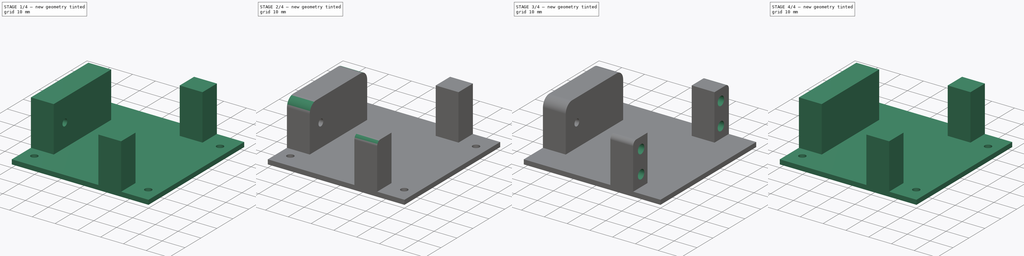
[diagram: build sequence overview — one tinted view per stage of 4, left to right]
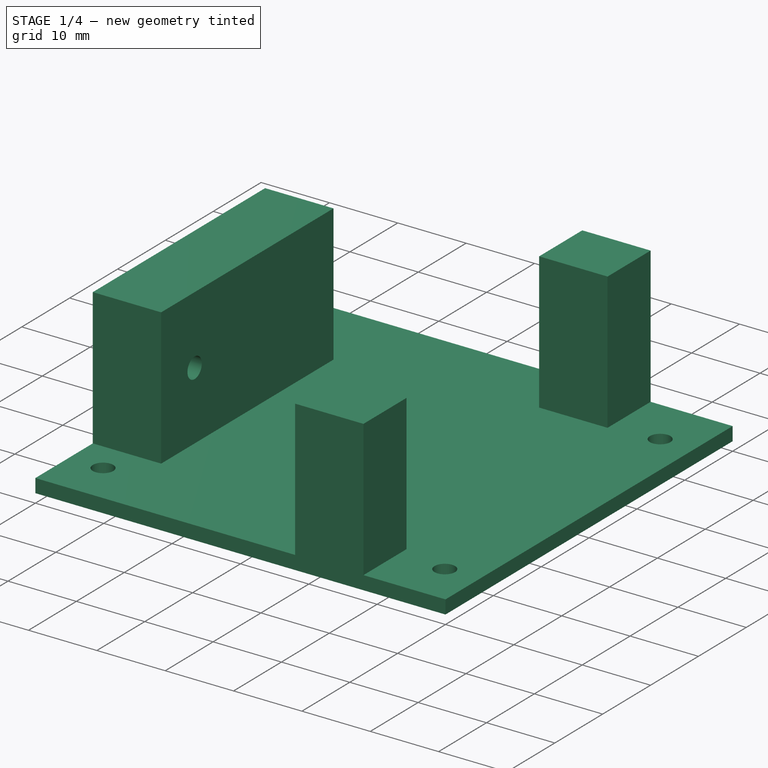
[diagram: stage 1 of 4 — iso view after this stage's code; geometry added in this stage tinted green]
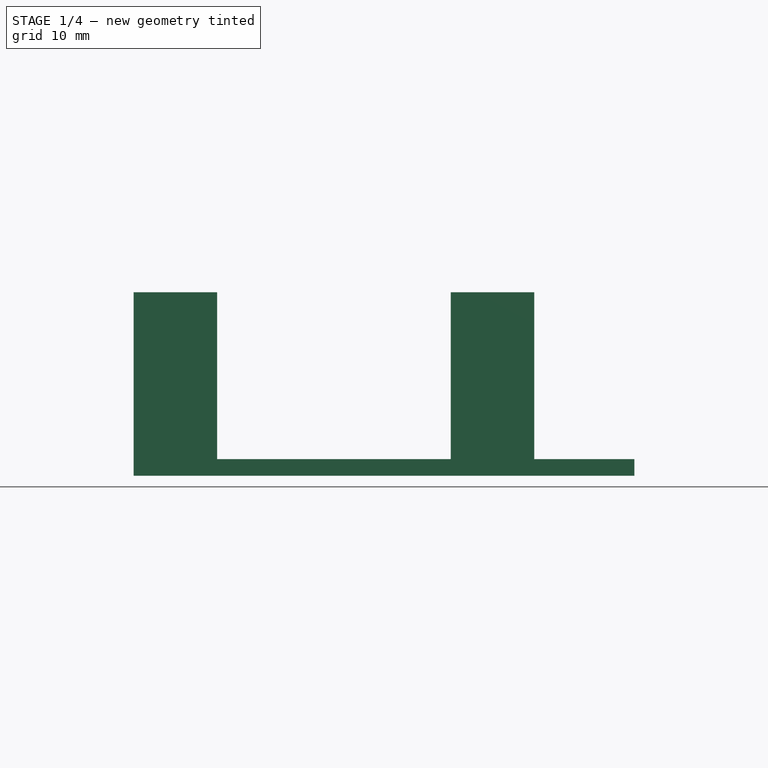
[diagram: stage 1 of 4 — front view after this stage's code; geometry added in this stage tinted green]
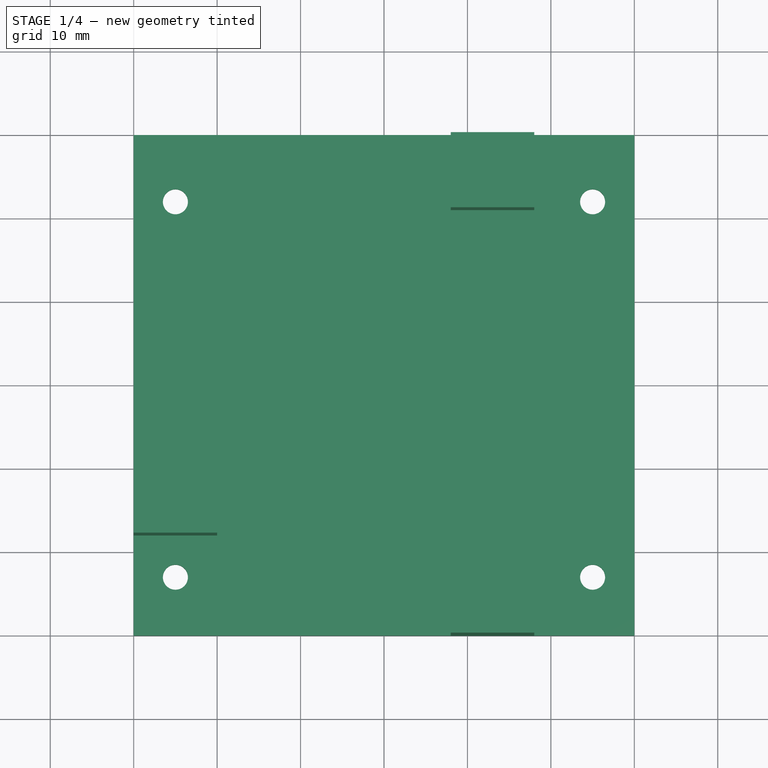
[diagram: stage 1 of 4 — top view after this stage's code; geometry added in this stage tinted green]
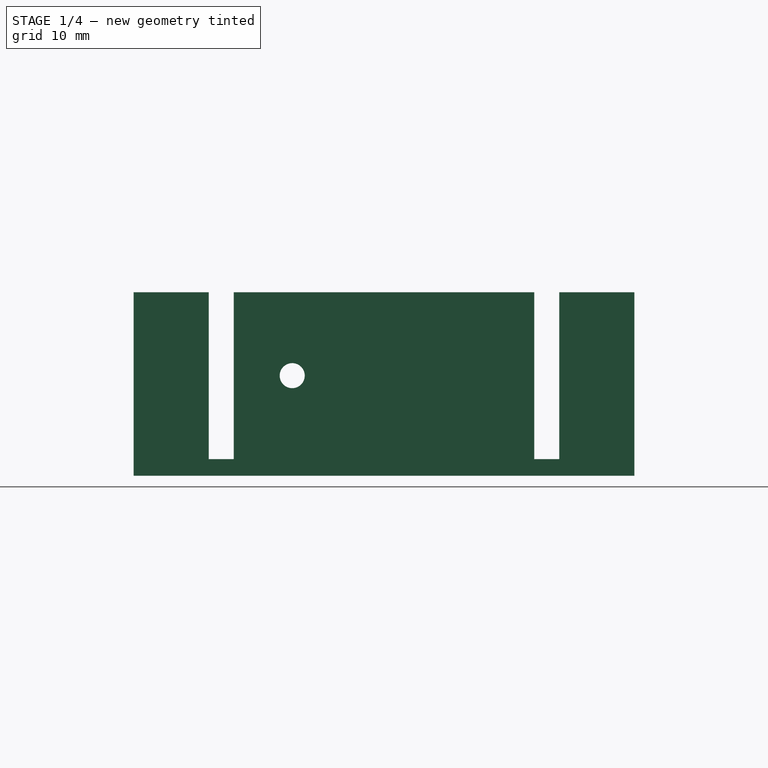
[diagram: stage 1 of 4 — right view after this stage's code; geometry added in this stage tinted green]
FCSTD DOCUMENT  (FreeCAD 0.16R6706 (Git))
Label: iROB-EA_Camara_Servo_Y
License: All rights reserved
LicenseURL: http://en.wikipedia.org/wiki/All_rights_reserved
objects: Sketcher::SketchObject×6, PartDesign::Pocket×4, PartDesign::Fillet×4, PartDesign::Pad×2
note: 22 computed .brp shape members not serialized (recipe doc carries the construction recipe); baked Part::Feature solids carry a one-line shape summary decoded from their .brp

FEATURE [Sketcher::SketchObject] Sketch004  label="Taladro_Eje_1"
  Placement = pos=(-60,0,0) rot=(0.57735,-0.57735,-0.57735;2.0944rad)
  sketch-geometry (1):
    g0: Circle CenterX=-19 CenterY=12 CenterZ=0 NormalX=0 NormalY=0 NormalZ=1 Radius=4.5
  constraints (3):
    c: Radius(g0) = 4.5
    c: DistanceX(g0,g-1) = 19
    c: DistanceY(g-1,g0) = 12
FEATURE [PartDesign::Pocket] Pocket002
  Length = 7
  Sketch = -> Sketch004
  Type = 0
FEATURE [Sketcher::SketchObject] Sketch005  label="Taladro_Eje_2"
  Placement = pos=(-50,0,0) rot=(0.57735,0.57735,0.57735;2.0944rad)
  Support = -> Pocket002 [Face19]
  sketch-geometry (1):
    g0: Circle CenterX=19 CenterY=12 CenterZ=0 NormalX=0 NormalY=0 NormalZ=1 Radius=1.5
  constraints (3):
    c: Radius(g0) = 1.5
    c: DistanceX(g-1,g0) = 19
    c: DistanceY(g-1,g0) = 12
FEATURE [PartDesign::Pocket] Pocket003
  Length = 5
  Sketch = -> Sketch005
  Type = 0
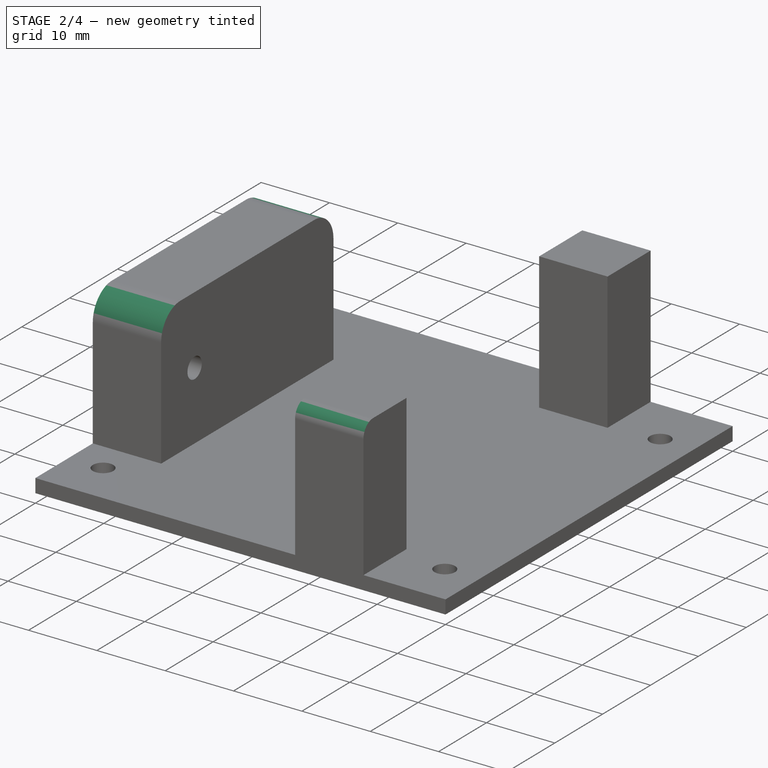
[diagram: stage 2 of 4 — iso view after this stage's code; geometry added in this stage tinted green]
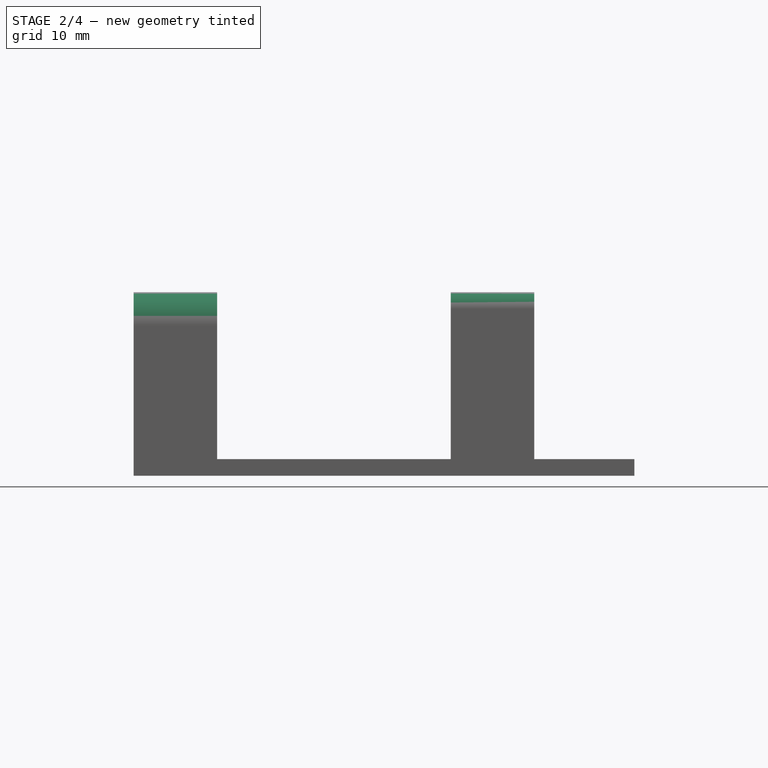
[diagram: stage 2 of 4 — front view after this stage's code; geometry added in this stage tinted green]
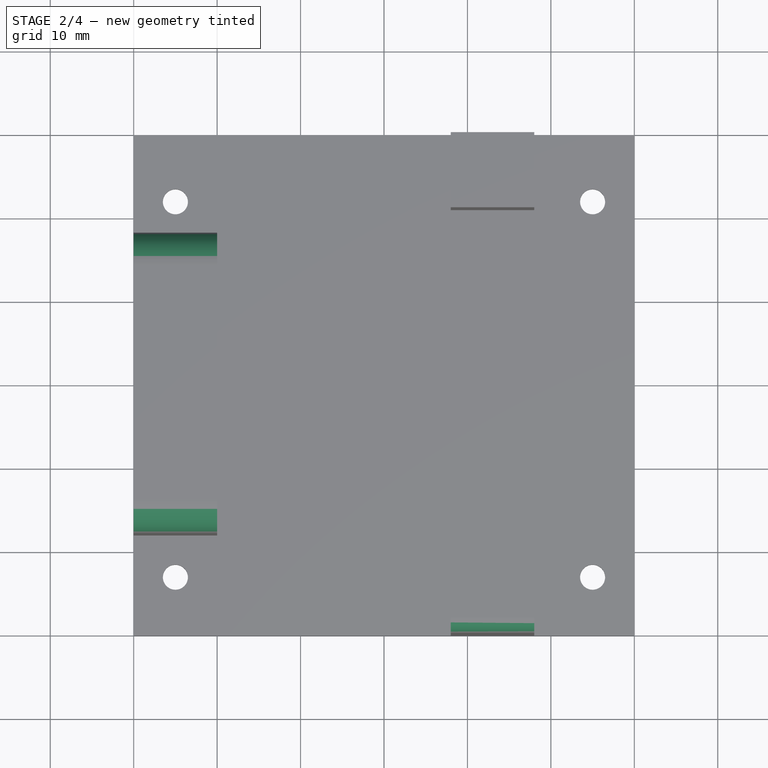
[diagram: stage 2 of 4 — top view after this stage's code; geometry added in this stage tinted green]
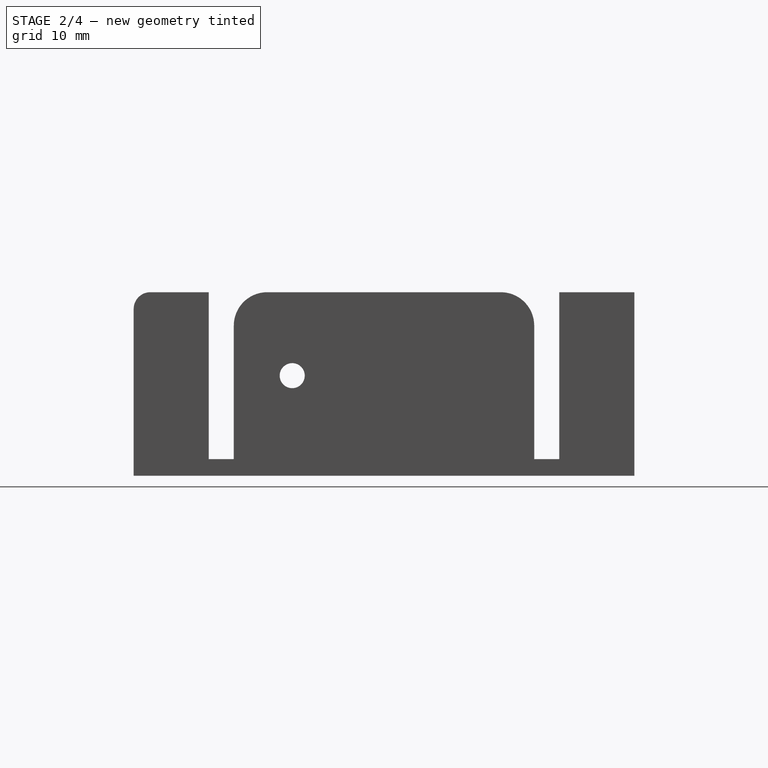
[diagram: stage 2 of 4 — right view after this stage's code; geometry added in this stage tinted green]
FEATURE [PartDesign::Fillet] Fillet
  Base = -> Pocket003 [Edge62]
  Radius = 4
FEATURE [PartDesign::Fillet] Fillet001
  Base = -> Fillet [Edge13]
  Radius = 4
FEATURE [PartDesign::Fillet] Fillet002
  Base = -> Fillet001 [Edge47]
  Radius = 2
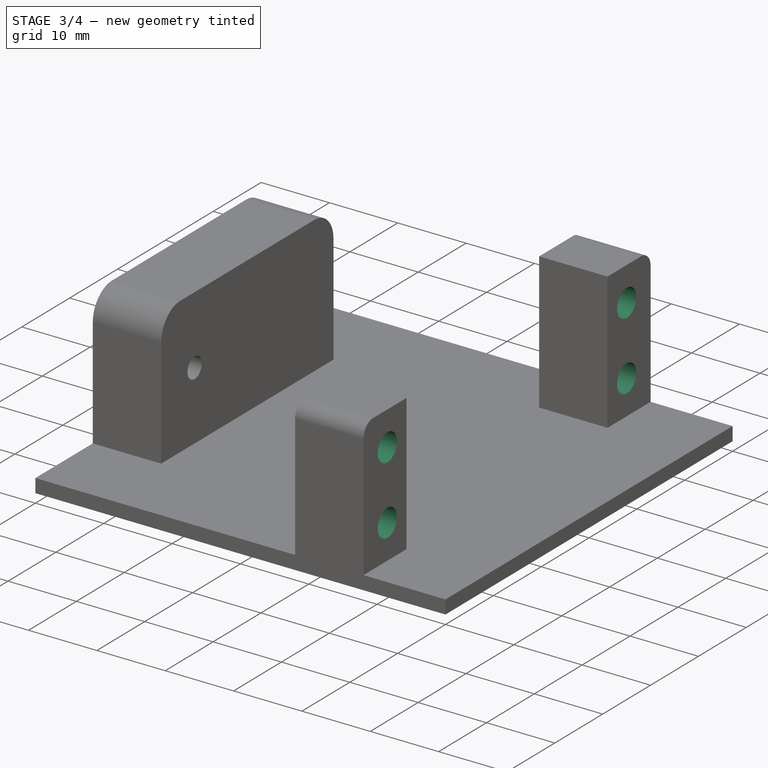
[diagram: stage 3 of 4 — iso view after this stage's code; geometry added in this stage tinted green]
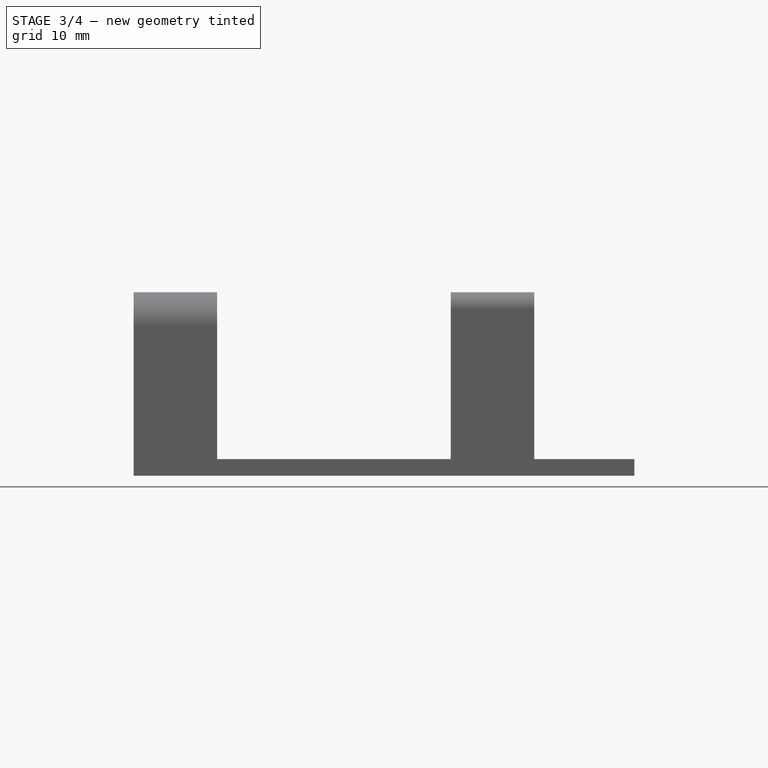
[diagram: stage 3 of 4 — front view after this stage's code; geometry added in this stage tinted green]
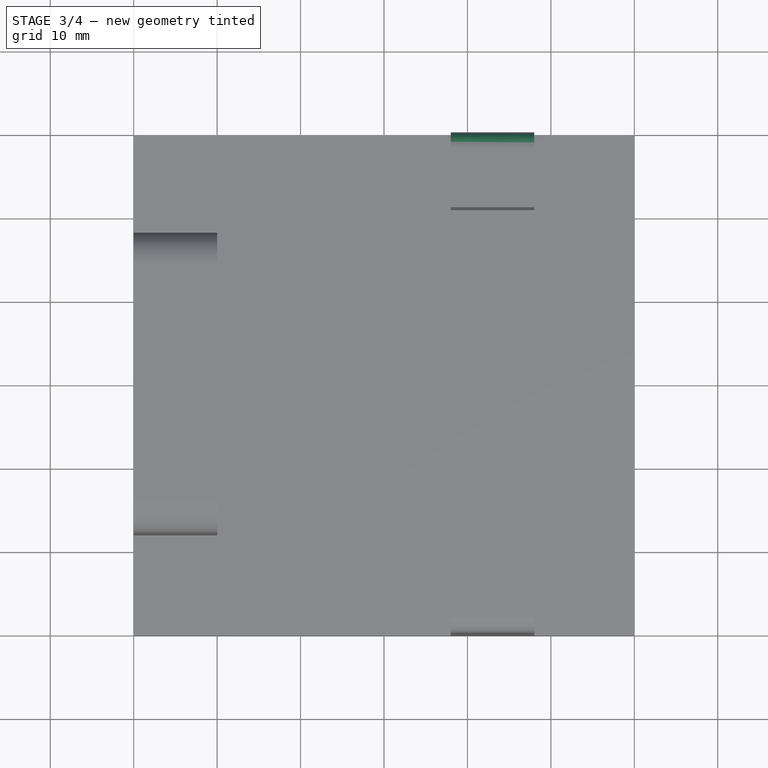
[diagram: stage 3 of 4 — top view after this stage's code; geometry added in this stage tinted green]
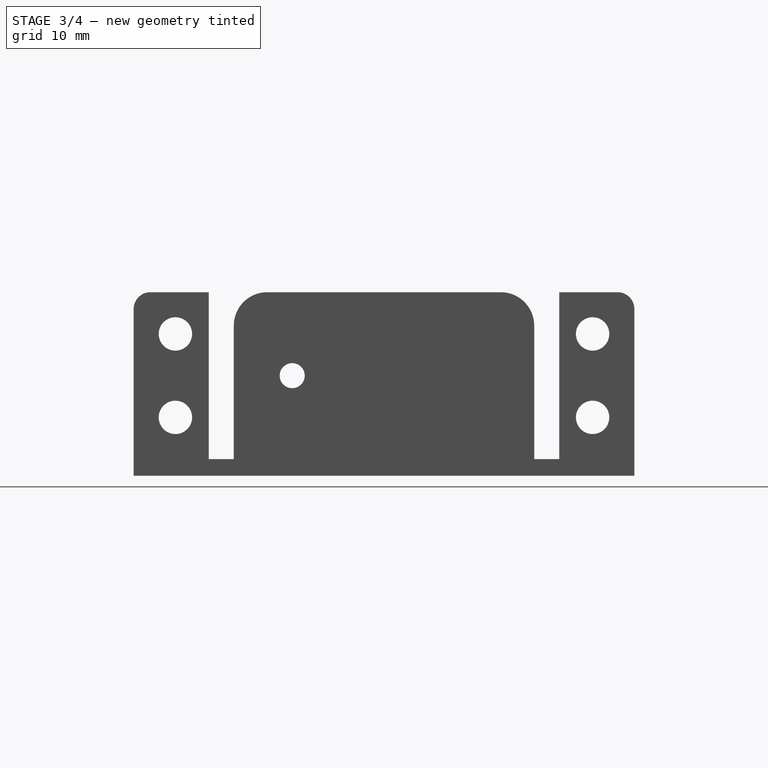
[diagram: stage 3 of 4 — right view after this stage's code; geometry added in this stage tinted green]
FEATURE [Sketcher::SketchObject] Sketch  label="Base"
  sketch-geometry (4):
    g0: LineSegment StartX=0 StartY=60 StartZ=0 EndX=-60 EndY=60 EndZ=0
    g1: LineSegment StartX=-60 StartY=60 StartZ=0 EndX=-60 EndY=0 EndZ=0
    g2: LineSegment StartX=-60 StartY=0 StartZ=0 EndX=0 EndY=0 EndZ=0
    g3: LineSegment StartX=0 StartY=0 StartZ=0 EndX=0 EndY=60 EndZ=0
  constraints (11):
    c: Coincident(g0,g1)
    c: Coincident(g1,g2)
    c: Coincident(g2,g3)
    c: Coincident(g3,g0)
    c: Horizontal(g0)
    c: Horizontal(g2)
    c: Vertical(g1)
    c: Vertical(g3)
    c: Coincident(g2,g-1)
    c: DistanceX(g0,g0) = 60
    c: DistanceY(g3,g3) = 60
FEATURE [PartDesign::Pad] Pad
  Length = 2
  Length2 = 100
  Sketch = -> Sketch
  Type = 0
FEATURE [PartDesign::Fillet] Fillet003
  Base = -> Fillet002 [Edge51]
  Radius = 2
FEATURE [Sketcher::SketchObject] Sketch006
  Placement = pos=(-12,0,0) rot=(0.57735,0.57735,0.57735;2.0944rad)
  Support = -> Fillet003 [Face17]
  sketch-geometry (4):
    g0: Circle CenterX=5 CenterY=17 CenterZ=0 NormalX=0 NormalY=0 NormalZ=1 Radius=2
    g1: Circle CenterX=5 CenterY=7 CenterZ=0 NormalX=0 NormalY=0 NormalZ=1 Radius=2
    g2: Circle CenterX=55 CenterY=17 CenterZ=0 NormalX=0 NormalY=0 NormalZ=1 Radius=2
    g3: Circle CenterX=55 CenterY=7 CenterZ=0 NormalX=0 NormalY=0 NormalZ=1 Radius=2
  constraints (12):
    c: Radius(g0) = 2
    c: Radius(g1) = 2
    c: DistanceX(g1,g0) = 0
    c: DistanceY(g1,g0) = 10
    c: Radius(g2) = 2
    c: Radius(g3) = 2
    c: DistanceX(g2,g3) = 0
    c: DistanceY(g3,g2) = 10
    c: DistanceY(g0,g2) = 0
    c: DistanceX(g0,g2) = 50
    c: DistanceX(g-1,g1) = 5
    c: DistanceY(g-1,g1) = 7
FEATURE [PartDesign::Pocket] Pocket004
  Length = 10
  Sketch = -> Sketch006
  Type = 0
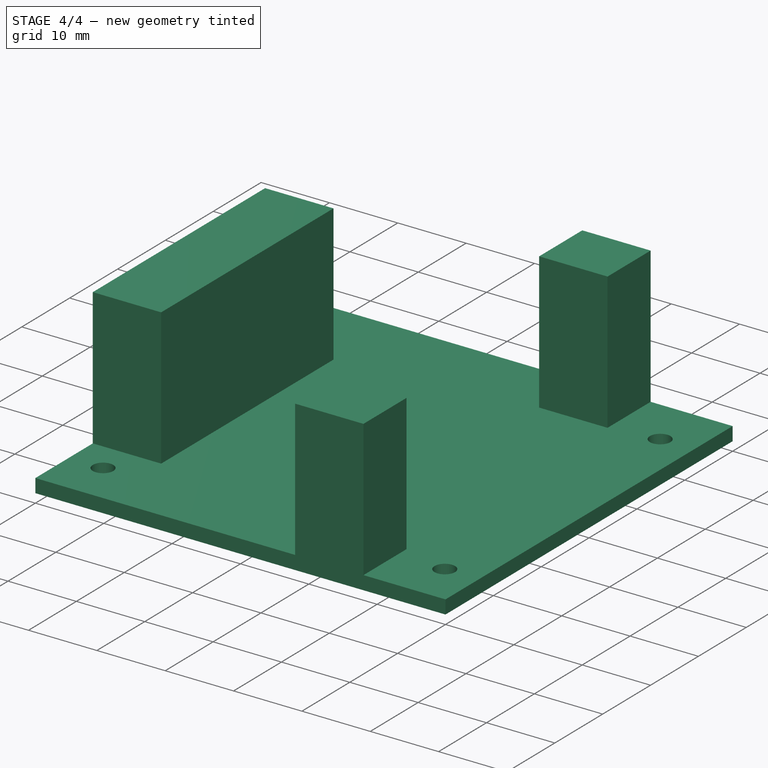
[diagram: stage 4 of 4 — iso view after this stage's code; geometry added in this stage tinted green]
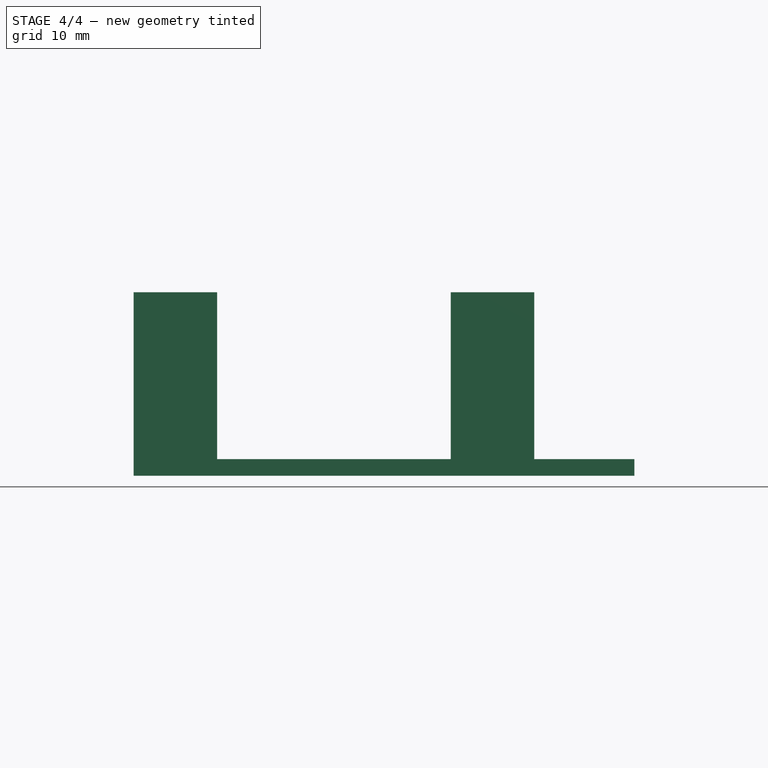
[diagram: stage 4 of 4 — front view after this stage's code; geometry added in this stage tinted green]
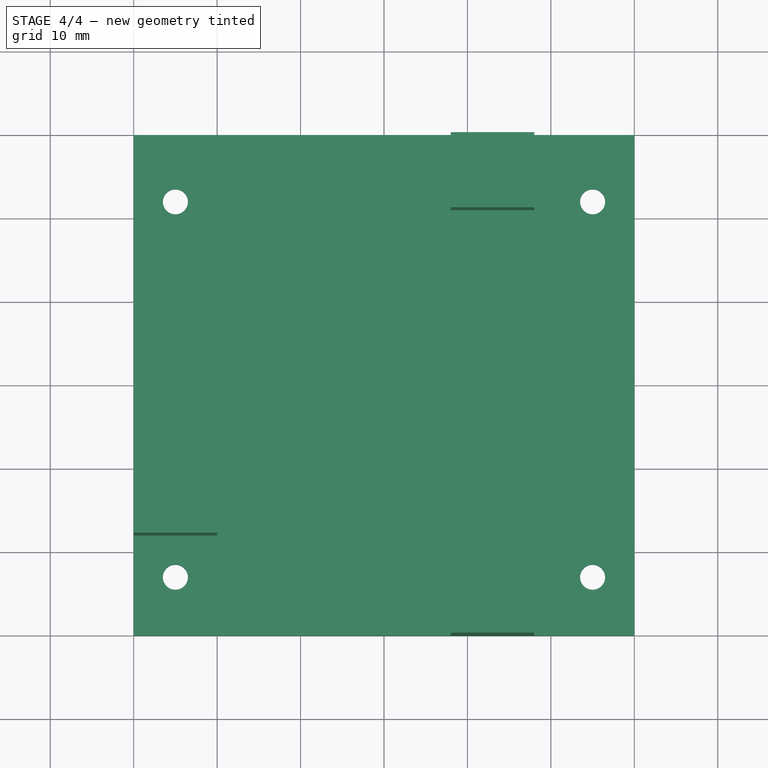
[diagram: stage 4 of 4 — top view after this stage's code; geometry added in this stage tinted green]
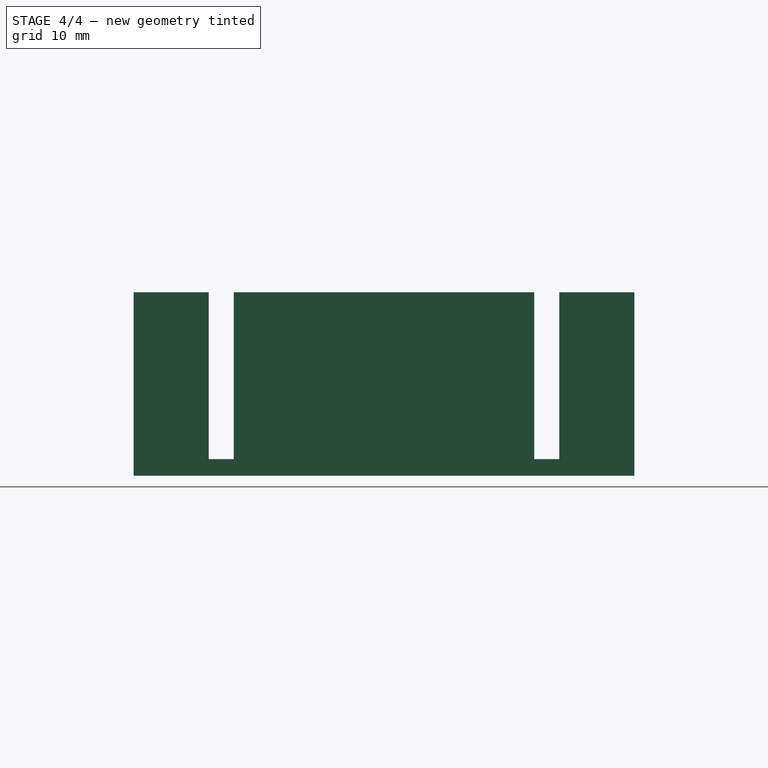
[diagram: stage 4 of 4 — right view after this stage's code; geometry added in this stage tinted green]
FEATURE [Sketcher::SketchObject] Sketch001  label="Taladros_Base"
  Placement = pos=(0,0,2) rot=(0,0,1;0rad)
  Support = -> Pad [Face6]
  sketch-geometry (4):
    g0: Circle CenterX=-55 CenterY=52 CenterZ=0 NormalX=0 NormalY=0 NormalZ=1 Radius=1.5
    g1: Circle CenterX=-5 CenterY=52 CenterZ=0 NormalX=0 NormalY=0 NormalZ=1 Radius=1.5
    g2: Circle CenterX=-55 CenterY=7 CenterZ=0 NormalX=0 NormalY=0 NormalZ=1 Radius=1.5
    g3: Circle CenterX=-5 CenterY=7 CenterZ=0 NormalX=0 NormalY=0 NormalZ=1 Radius=1.5
  constraints (12):
    c: Radius(g0) = 1.5
    c: Radius(g1) = 1.5
    c: DistanceY(g0,g1) = 0
    c: DistanceX(g0,g1) = 50
    c: Radius(g2) = 1.5
    c: Radius(g3) = 1.5
    c: DistanceY(g2,g3) = 0
    c: DistanceX(g2,g3) = 50
    c: DistanceX(g2,g0) = 0
    c: DistanceY(g2,g0) = 45
    c: DistanceX(g3,g-1) = 5
    c: DistanceY(g-1,g3) = 7
FEATURE [PartDesign::Pocket] Pocket
  Length = 5
  Sketch = -> Sketch001
  Type = 0
FEATURE [Sketcher::SketchObject] Sketch002  label="Soportes_Servo"
  Placement = pos=(0,0,2) rot=(0,0,1;0rad)
  Support = -> Pocket [Face5]
  sketch-geometry (12):
    g0: LineSegment StartX=-22 StartY=9 StartZ=0 EndX=-12 EndY=9 EndZ=0
    g1: LineSegment StartX=-12 StartY=9 StartZ=0 EndX=-12 EndY=0 EndZ=0
    g2: LineSegment StartX=-12 StartY=0 StartZ=0 EndX=-22 EndY=0 EndZ=0
    g3: LineSegment StartX=-22 StartY=0 StartZ=0 EndX=-22 EndY=9 EndZ=0
    g4: LineSegment StartX=-22 StartY=60 StartZ=0 EndX=-12 EndY=60 EndZ=0
    g5: LineSegment StartX=-12 StartY=60 StartZ=0 EndX=-12 EndY=51 EndZ=0
    g6: LineSegment StartX=-12 StartY=51 StartZ=0 EndX=-22 EndY=51 EndZ=0
    g7: LineSegment StartX=-22 StartY=51 StartZ=0 EndX=-22 EndY=60 EndZ=0
    g8: LineSegment StartX=-60 StartY=48 StartZ=0 EndX=-50 EndY=48 EndZ=0
    g9: LineSegment StartX=-50 StartY=48 StartZ=0 EndX=-50 EndY=12 EndZ=0
    g10: LineSegment StartX=-50 StartY=12 StartZ=0 EndX=-60 EndY=12 EndZ=0
    g11: LineSegment StartX=-60 StartY=12 StartZ=0 EndX=-60 EndY=48 EndZ=0
  constraints (36):
    c: Coincident(g0,g1)
    c: Coincident(g1,g2)
    c: Coincident(g2,g3)
    c: Coincident(g3,g0)
    c: Horizontal(g0)
    c: Horizontal(g2)
    c: Vertical(g1)
    c: Vertical(g3)
    c: DistanceY(g1,g1) = 9
    c: DistanceX(g0,g0) = 10
    c: Coincident(g4,g5)
    c: Coincident(g5,g6)
    c: Coincident(g6,g7)
    c: Coincident(g7,g4)
    c: Horizontal(g4)
    c: Horizontal(g6)
    c: Vertical(g5)
    c: Vertical(g7)
    c: DistanceY(g5,g5) = 9
    c: DistanceX(g4,g4) = 10
    c: DistanceX(g0,g5) = 0
    c: DistanceY(g0,g6) = 42
    c: DistanceY(g-1,g1) = 0
    c: DistanceX(g1,g-1) = 12
    c: Coincident(g8,g9)
    c: Coincident(g9,g10)
    c: Coincident(g10,g11)
    c: Coincident(g11,g8)
    c: Horizontal(g8)
    c: Horizontal(g10)
    c: Vertical(g9)
    c: Vertical(g11)
    c: DistanceX(g8,g8) = 10
    c: DistanceY(g9,g9) = 36
    c: DistanceX(g9,g-1) = 50
    c: DistanceY(g-1,g9) = 12
FEATURE [PartDesign::Pad] Pad001
  Length = 20
  Length2 = 100
  Sketch = -> Sketch002
  Type = 0
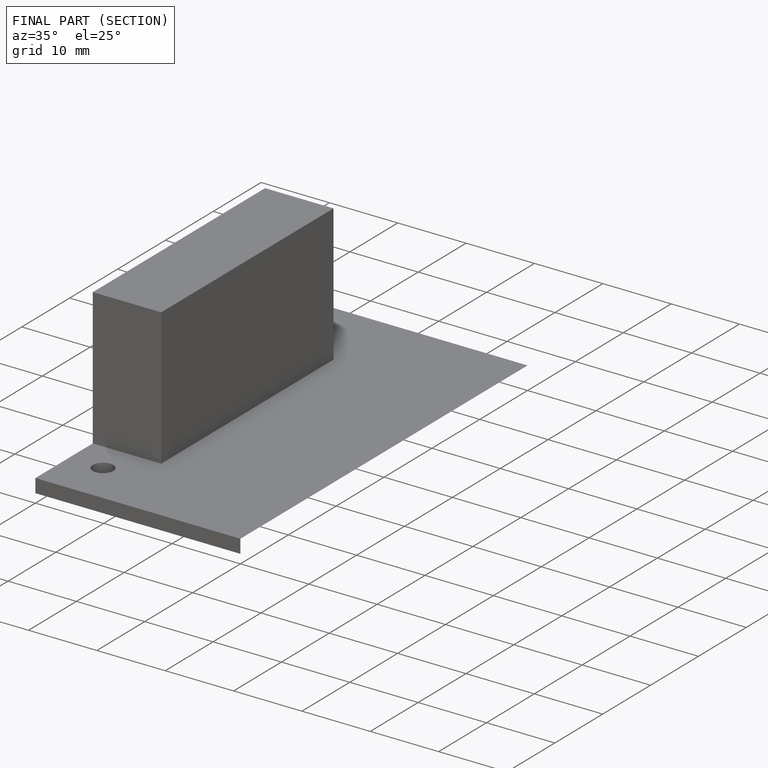
[diagram: finished part — half-section view (interior)]
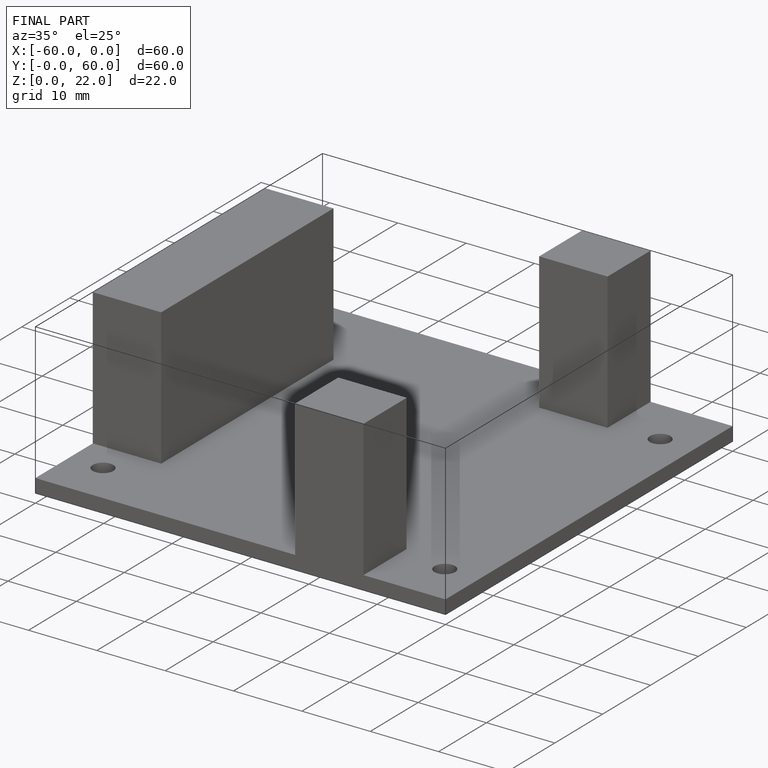
[diagram: finished part — iso view with bounding-box wireframe]
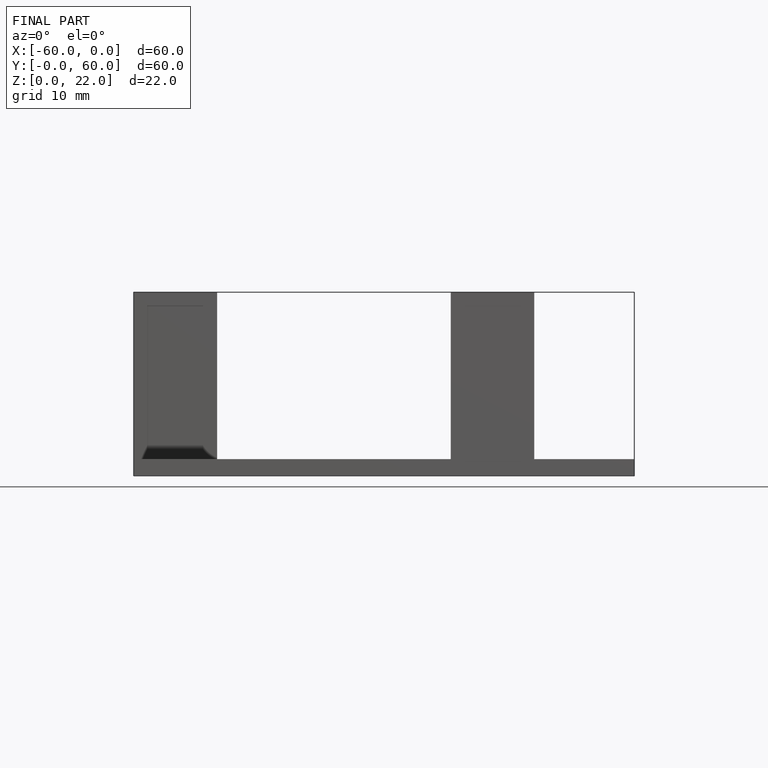
[diagram: finished part — front view with bounding-box wireframe]
